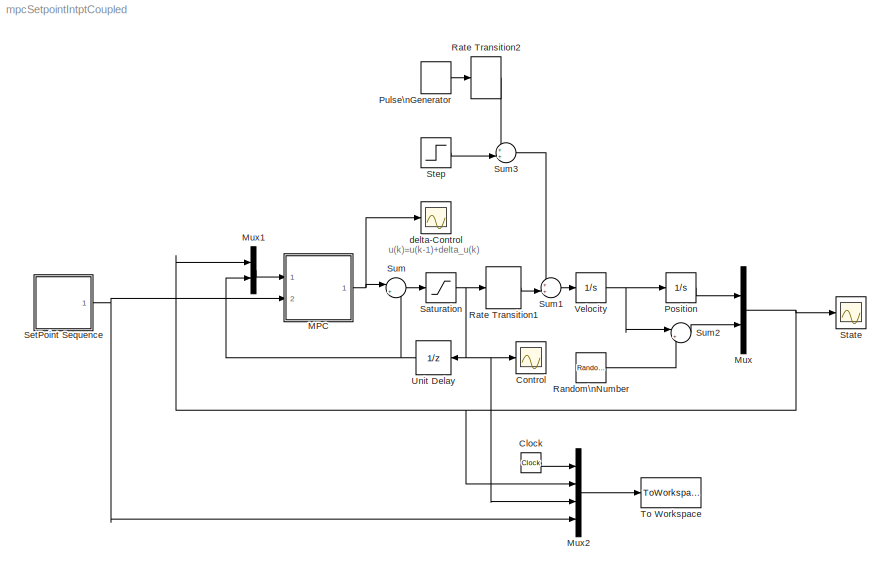
MODEL mpcSetpointIntptCoupled
KIND model
BLOCK [Clock] Clock
  SID = 339
BLOCK [Scope] Control
  DataFormat = StructureWithTime
  Floating = off
  NumInputPorts = 1
  Ports = [1]
  SID = 8
  SampleTime = 0
  SaveName = ScopeData1
  ShowLegends = off
  TimeRange = 200
  YMax = 0.1
  YMin = -0.1
  ZoomMode = yonly
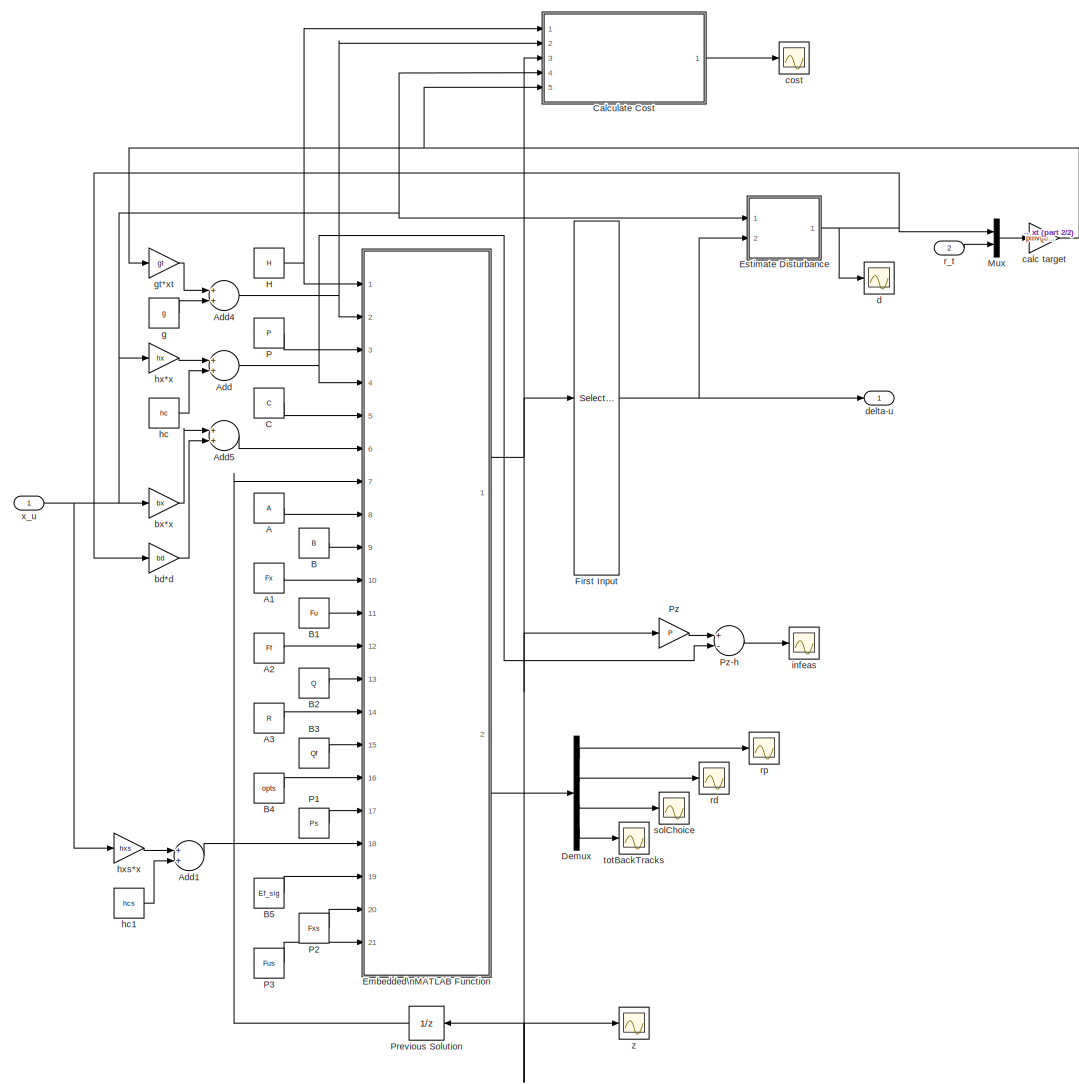
[diagram: MPC - part 1/2, most of the canvas]
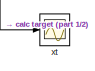
[diagram: MPC - part 2/2, top right region]
BLOCK [SubSystem] MPC
  FunctionWithSeparateData = off
  MaskHideContents = off
  MinAlgLoopOccurrences = off
  Opaque = off
  Ports = [2, 1]
  PropExecContextOutsideSubsystem = off
  RTWFcnNameOpts = Use subsystem name
  RTWFileNameOpts = Use subsystem name
  RTWSystemCode = Function
  RequestExecContextInheritance = off
  SID = 202
  SystemSampleTime = dt
  TreatAsAtomicUnit = on
BLOCK [Constant] MPC/A
  SID = 273
  Value = A
BLOCK [Constant] MPC/A1
  SID = 308
  Value = Fx
BLOCK [Constant] MPC/A2
  SID = 310
  Value = Ff
BLOCK [Constant] MPC/A3
  SID = 312
  Value = R
BLOCK [Sum] MPC/Add
  InputSameDT = off
  OutDataTypeStr = Inherit: Inherit via internal rule
  Ports = [2, 1]
  SID = 296
  SaturateOnIntegerOverflow = off
BLOCK [Sum] MPC/Add1
  InputSameDT = off
  OutDataTypeStr = Inherit: Inherit via internal rule
  Ports = [2, 1]
  SID = 322
  SaturateOnIntegerOverflow = off
BLOCK [Sum] MPC/Add4
  InputSameDT = off
  OutDataTypeStr = Inherit: Inherit via internal rule
  Ports = [2, 1]
  SID = 351
  SaturateOnIntegerOverflow = off
BLOCK [Sum] MPC/Add5
  InputSameDT = off
  OutDataTypeStr = Inherit: Inherit via internal rule
  Ports = [2, 1]
  SID = 354
  SaturateOnIntegerOverflow = off
BLOCK [Constant] MPC/B
  SID = 274
  Value = B
BLOCK [Constant] MPC/B1
  SID = 309
  Value = Fu
BLOCK [Constant] MPC/B2
  SID = 311
  Value = Q
BLOCK [Constant] MPC/B3
  SID = 313
  Value = Qf
BLOCK [Constant] MPC/B4
  SID = 320
  Value = opts
BLOCK [Constant] MPC/B5
  SID = 361
  Value = Ef_sig
BLOCK [Constant] MPC/C
  SID = 243
  Value = C
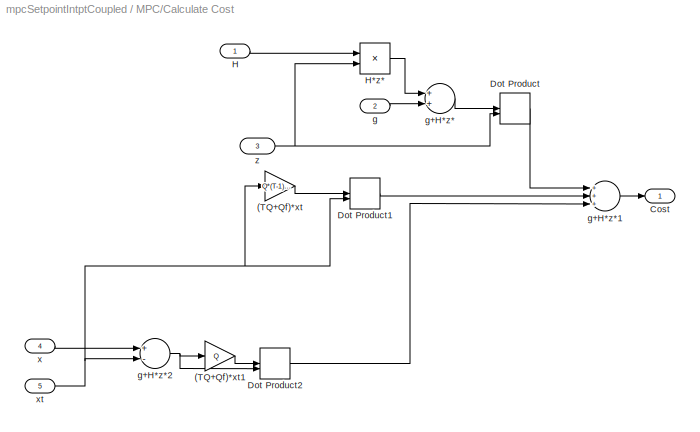
BLOCK [SubSystem] MPC/Calculate Cost
  FunctionWithSeparateData = off
  MaskHideContents = off
  MinAlgLoopOccurrences = off
  Opaque = off
  Ports = [5, 1]
  PropExecContextOutsideSubsystem = off
  RTWSystemCode = Auto
  RequestExecContextInheritance = off
  SID = 380
BLOCK [Gain] MPC/Calculate Cost/(TQ+Qf)*xt
  Gain = Q*(T-1)+Qf
  Multiplication = Matrix(K*u)
  OutDataTypeStr = Inherit: Inherit via internal rule
  ParamDataTypeStr = Inherit: Inherit via internal rule
  SID = 369
  SaturateOnIntegerOverflow = off
BLOCK [Gain] MPC/Calculate Cost/(TQ+Qf)*xt1
  Gain = Q
  Multiplication = Matrix(K*u)
  OutDataTypeStr = Inherit: Inherit via internal rule
  ParamDataTypeStr = Inherit: Inherit via internal rule
  SID = 377
  SaturateOnIntegerOverflow = off
BLOCK [Outport] MPC/Calculate Cost/Cost
  IconDisplay = Port number
  SID = 383
BLOCK [DotProduct] MPC/Calculate Cost/Dot Product
  OutDataTypeStr = Inherit: Inherit via internal rule
  SID = 370
BLOCK [DotProduct] MPC/Calculate Cost/Dot Product1
  OutDataTypeStr = Inherit: Inherit via internal rule
  SID = 371
BLOCK [DotProduct] MPC/Calculate Cost/Dot Product2
  OutDataTypeStr = Inherit: Inherit via internal rule
  SID = 379
BLOCK [Inport] MPC/Calculate Cost/H
  IconDisplay = Port number
  SID = 381
BLOCK [Product] MPC/Calculate Cost/H*z*
  InputSameDT = off
  Multiplication = Matrix(*)
  OutDataTypeStr = Inherit: Inherit via internal rule
  Ports = [2, 1]
  SID = 372
  SaturateOnIntegerOverflow = off
BLOCK [Inport] MPC/Calculate Cost/g
  IconDisplay = Port number
  Port = 2
  SID = 382
BLOCK [Sum] MPC/Calculate Cost/g+H*z*
  InputSameDT = off
  OutDataTypeStr = Inherit: Inherit via internal rule
  Ports = [2, 1]
  SID = 373
  SaturateOnIntegerOverflow = off
BLOCK [Sum] MPC/Calculate Cost/g+H*z*1
  InputSameDT = off
  Inputs = +++
  OutDataTypeStr = Inherit: Inherit via internal rule
  Ports = [3, 1]
  SID = 374
  SaturateOnIntegerOverflow = off
BLOCK [Sum] MPC/Calculate Cost/g+H*z*2
  InputSameDT = off
  Inputs = +-
  OutDataTypeStr = Inherit: Inherit via internal rule
  Ports = [2, 1]
  SID = 378
  SaturateOnIntegerOverflow = off
BLOCK [Inport] MPC/Calculate Cost/x
  IconDisplay = Port number
  Port = 4
  SID = 385
BLOCK [Inport] MPC/Calculate Cost/xt
  IconDisplay = Port number
  Port = 5
  SID = 386
BLOCK [Inport] MPC/Calculate Cost/z
  IconDisplay = Port number
  Port = 3
  SID = 384
BLOCK [Demux] MPC/Demux
  DisplayOption = bar
  Ports = [1, 4]
  SID = 314
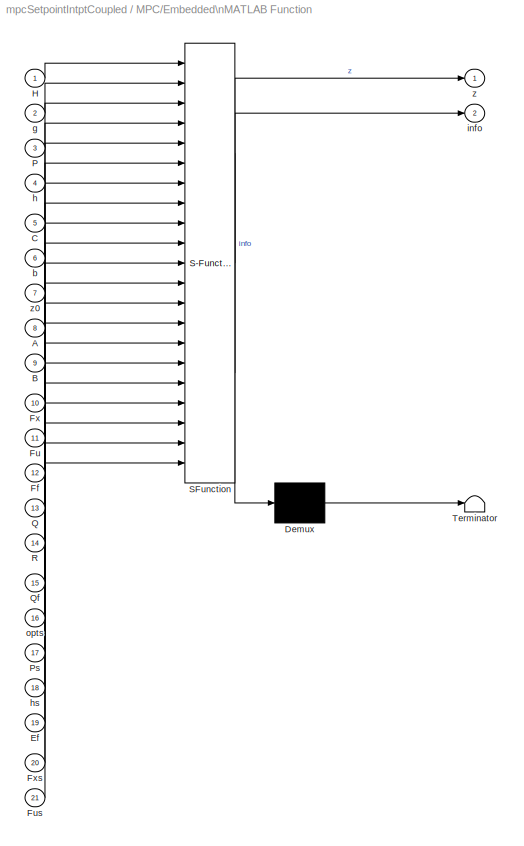
BLOCK [SubSystem] MPC/Embedded\nMATLAB Function
  ErrorFcn = Stateflow.Translate.translate
  FunctionWithSeparateData = off
  MaskHideContents = off
  MinAlgLoopOccurrences = off
  Opaque = off
  PermitHierarchicalResolution = ExplicitOnly
  Ports = [21, 2]
  PropExecContextOutsideSubsystem = off
  RTWFileNameOpts = Use subsystem name
  RTWSystemCode = Auto
  RequestExecContextInheritance = off
  SFBlockType = MATLAB Function
  SID = 231
  TreatAsAtomicUnit = on
BLOCK [Demux] MPC/Embedded\nMATLAB Function/ Demux 
  Outputs = 1
  Ports = [1, 1]
  SID = 231::36
BLOCK [S-Function] MPC/Embedded\nMATLAB Function/ SFunction 
  EnableBusSupport = on
  FunctionName = sf_sfun
  PortCounts = [21 3]
  Ports = [21, 3]
  SID = 231::35
  Tag = Stateflow S-Function mpcSetpointIntptCoupled 2
BLOCK [Terminator] MPC/Embedded\nMATLAB Function/ Terminator 
  SID = 231::37
BLOCK [Inport] MPC/Embedded\nMATLAB Function/A
  IconDisplay = Port number
  Port = 8
  SID = 231::17
BLOCK [Inport] MPC/Embedded\nMATLAB Function/B
  IconDisplay = Port number
  Port = 9
  SID = 231::22
BLOCK [Inport] MPC/Embedded\nMATLAB Function/C
  IconDisplay = Port number
  Port = 5
  SID = 231::13
BLOCK [Inport] MPC/Embedded\nMATLAB Function/Ef
  IconDisplay = Port number
  Port = 19
  SID = 231::33
BLOCK [Inport] MPC/Embedded\nMATLAB Function/Ff
  IconDisplay = Port number
  Port = 12
  SID = 231::25
BLOCK [Inport] MPC/Embedded\nMATLAB Function/Fu
  IconDisplay = Port number
  Port = 11
  SID = 231::24
BLOCK [Inport] MPC/Embedded\nMATLAB Function/Fus
  IconDisplay = Port number
  Port = 21
  SID = 231::38
BLOCK [Inport] MPC/Embedded\nMATLAB Function/Fx
  IconDisplay = Port number
  Port = 10
  SID = 231::23
BLOCK [Inport] MPC/Embedded\nMATLAB Function/Fxs
  IconDisplay = Port number
  Port = 20
  SID = 231::34
BLOCK [Inport] MPC/Embedded\nMATLAB Function/H
  IconDisplay = Port number
  SID = 231::1
BLOCK [Inport] MPC/Embedded\nMATLAB Function/P
  IconDisplay = Port number
  Port = 3
  SID = 231::11
BLOCK [Inport] MPC/Embedded\nMATLAB Function/Ps
  IconDisplay = Port number
  Port = 17
  SID = 231::31
BLOCK [Inport] MPC/Embedded\nMATLAB Function/Q
  IconDisplay = Port number
  Port = 13
  SID = 231::26
BLOCK [Inport] MPC/Embedded\nMATLAB Function/Qf
  IconDisplay = Port number
  Port = 15
  SID = 231::28
BLOCK [Inport] MPC/Embedded\nMATLAB Function/R
  IconDisplay = Port number
  Port = 14
  SID = 231::27
BLOCK [Inport] MPC/Embedded\nMATLAB Function/b
  IconDisplay = Port number
  Port = 6
  SID = 231::14
BLOCK [Inport] MPC/Embedded\nMATLAB Function/g
  IconDisplay = Port number
  Port = 2
  SID = 231::10
BLOCK [Inport] MPC/Embedded\nMATLAB Function/h
  IconDisplay = Port number
  Port = 4
  SID = 231::12
BLOCK [Inport] MPC/Embedded\nMATLAB Function/hs
  IconDisplay = Port number
  Port = 18
  SID = 231::32
BLOCK [Outport] MPC/Embedded\nMATLAB Function/info
  IconDisplay = Port number
  Port = 2
  SID = 231::29
BLOCK [Inport] MPC/Embedded\nMATLAB Function/opts
  IconDisplay = Port number
  Port = 16
  SID = 231::30
BLOCK [Outport] MPC/Embedded\nMATLAB Function/z
  IconDisplay = Port number
  SID = 231::5
BLOCK [Inport] MPC/Embedded\nMATLAB Function/z0
  IconDisplay = Port number
  Port = 7
  SID = 231::15
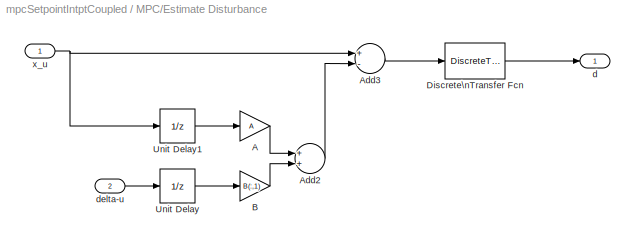
BLOCK [SubSystem] MPC/Estimate Disturbance
  FunctionWithSeparateData = off
  MaskHideContents = off
  MinAlgLoopOccurrences = off
  Opaque = off
  Ports = [2, 1]
  PropExecContextOutsideSubsystem = off
  RTWSystemCode = Auto
  RequestExecContextInheritance = off
  SID = 364
BLOCK [Gain] MPC/Estimate Disturbance/A
  Gain = A
  Multiplication = Matrix(K*u)
  OutDataTypeStr = Inherit: Inherit via internal rule
  ParamDataTypeStr = Inherit: Inherit via internal rule
  SID = 342
  SaturateOnIntegerOverflow = off
BLOCK [Sum] MPC/Estimate Disturbance/Add2
  InputSameDT = off
  OutDataTypeStr = Inherit: Inherit via internal rule
  Ports = [2, 1]
  SID = 344
  SaturateOnIntegerOverflow = off
BLOCK [Sum] MPC/Estimate Disturbance/Add3
  InputSameDT = off
  Inputs = +-
  OutDataTypeStr = Inherit: Inherit via internal rule
  Ports = [2, 1]
  SID = 345
  SaturateOnIntegerOverflow = off
BLOCK [Gain] MPC/Estimate Disturbance/B
  Gain = B(:,1)
  Multiplication = Matrix(K*u)
  OutDataTypeStr = Inherit: Inherit via internal rule
  ParamDataTypeStr = Inherit: Inherit via internal rule
  SID = 343
  SaturateOnIntegerOverflow = off
BLOCK [DiscreteTransferFcn] MPC/Estimate Disturbance/Discrete\nTransfer Fcn
  Denominator = [1 -0.5]
  InputPortMap = u0
  Numerator = [0.5]
  Ports = [1, 1]
  SID = 368
BLOCK [UnitDelay] MPC/Estimate Disturbance/Unit Delay
  InputProcessing = Elements as channels (sample based)
  SID = 340
  SampleTime = -1
BLOCK [UnitDelay] MPC/Estimate Disturbance/Unit Delay1
  InputProcessing = Elements as channels (sample based)
  SID = 341
  SampleTime = -1
BLOCK [Outport] MPC/Estimate Disturbance/d
  IconDisplay = Port number
  SID = 366
BLOCK [Inport] MPC/Estimate Disturbance/delta-u
  IconDisplay = Port number
  Port = 2
  SID = 367
BLOCK [Inport] MPC/Estimate Disturbance/x_u
  IconDisplay = Port number
  SID = 365
BLOCK [Selector] MPC/First Input
  IndexOptions = Index vector (dialog)
  Indices = 1
  InputPortWidth = T*(n+m)
  OutputSizes = 1
  Ports = [1, 1]
  SID = 204
BLOCK [Constant] MPC/H
  SID = 236
  Value = H
BLOCK [Mux] MPC/Mux
  DisplayOption = bar
  Inputs = 2
  Ports = [2, 1]
  SID = 348
BLOCK [Constant] MPC/P
  SID = 244
  Value = P
BLOCK [Constant] MPC/P1
  SID = 321
  Value = Ps
BLOCK [Constant] MPC/P2
  SID = 362
  Value = Fxs
BLOCK [Constant] MPC/P3
  SID = 363
  Value = Fus
BLOCK [UnitDelay] MPC/Previous Solution
  SID = 238
  SampleTime = -1
BLOCK [Gain] MPC/Pz
  Gain = P
  Multiplication = Matrix(K*u)
  OutDataTypeStr = Inherit: Inherit via internal rule
  ParamDataTypeStr = Inherit: Inherit via internal rule
  SID = 397
  SaturateOnIntegerOverflow = off
BLOCK [Sum] MPC/Pz-h
  InputSameDT = off
  Inputs = +-
  OutDataTypeStr = Inherit: Inherit via internal rule
  Ports = [2, 1]
  SID = 398
  SaturateOnIntegerOverflow = off
BLOCK [Gain] MPC/bd*d
  Gain = bd
  Multiplication = Matrix(K*u)
  OutDataTypeStr = Inherit: Inherit via internal rule
  ParamDataTypeStr = Inherit: Inherit via internal rule
  SID = 353
  SaturateOnIntegerOverflow = off
BLOCK [Gain] MPC/bx*x
  Gain = bx
  Multiplication = Matrix(K*u)
  OutDataTypeStr = Inherit: Inherit via internal rule
  ParamDataTypeStr = Inherit: Inherit via internal rule
  SID = 298
  SaturateOnIntegerOverflow = off
BLOCK [Gain] MPC/calc target
  Gain = pinv([eye(3)-A;1 0 0])
  Multiplication = Matrix(K*u)
  OutDataTypeStr = Inherit: Inherit via internal rule
  ParamDataTypeStr = Inherit: Inherit via internal rule
  SID = 356
  SaturateOnIntegerOverflow = off
BLOCK [Scope] MPC/cost
  DataFormat = StructureWithTime
  Floating = off
  NumInputPorts = 1
  Ports = [1]
  SID = 376
  SampleTime = 0
  SaveName = ScopeData8
  ShowLegends = off
  YMax = 1e+06
  YMin = -1.9e+07
  ZoomMode = yonly
BLOCK [Scope] MPC/d
  DataFormat = StructureWithTime
  Floating = off
  NumInputPorts = 1
  Ports = [1]
  SID = 346
  SampleTime = 0
  SaveName = ScopeData6
  ShowLegends = off
  YMax = 0.002
  YMin = -0.00025
BLOCK [Outport] MPC/delta-u
  IconDisplay = Port number
  SID = 208
BLOCK [Constant] MPC/g
  SID = 233
  Value = g
BLOCK [Gain] MPC/gt*xt
  Gain = gt
  Multiplication = Matrix(K*u)
  OutDataTypeStr = Inherit: Inherit via internal rule
  ParamDataTypeStr = Inherit: Inherit via internal rule
  SID = 352
  SaturateOnIntegerOverflow = off
BLOCK [Constant] MPC/hc
  SID = 209
  Value = hc
BLOCK [Constant] MPC/hc1
  SID = 323
  Value = hcs
BLOCK [Gain] MPC/hx*x
  Gain = hx
  Multiplication = Matrix(K*u)
  OutDataTypeStr = Inherit: Inherit via internal rule
  ParamDataTypeStr = Inherit: Inherit via internal rule
  SID = 297
  SaturateOnIntegerOverflow = off
BLOCK [Gain] MPC/hxs*x
  Gain = hxs
  Multiplication = Matrix(K*u)
  OutDataTypeStr = Inherit: Inherit via internal rule
  ParamDataTypeStr = Inherit: Inherit via internal rule
  SID = 324
  SaturateOnIntegerOverflow = off
BLOCK [Scope] MPC/infeas
  DataFormat = StructureWithTime
  Floating = off
  NumInputPorts = 1
  Ports = [1]
  SID = 399
  SampleTime = 0
  SaveName = ScopeData11
  ShowLegends = off
  YMax = 2.75e-08
  YMin = 1.65436e-24
  ZoomMode = yonly
BLOCK [Inport] MPC/r_t
  IconDisplay = Port number
  Port = 2
  SID = 349
BLOCK [Scope] MPC/rd
  DataFormat = StructureWithTime
  Floating = off
  NumInputPorts = 1
  Ports = [1]
  SID = 316
  SampleTime = 0
  SaveName = ScopeData4
  ShowLegends = off
  YMax = 13
  YMin = 0
  ZoomMode = yonly
BLOCK [Scope] MPC/rp
  DataFormat = StructureWithTime
  Floating = off
  NumInputPorts = 1
  Ports = [1]
  SID = 315
  SampleTime = 0
  SaveName = ScopeData3
  ShowLegends = off
  YMax = 2.75e-08
  YMin = 1.65436e-24
  ZoomMode = yonly
BLOCK [Scope] MPC/solChoice
  DataFormat = StructureWithTime
  Floating = off
  NumInputPorts = 1
  Ports = [1]
  SID = 317
  SampleTime = 0
  SaveName = ScopeData5
  ShowLegends = off
  YMax = 4.2
  YMin = 3.8
BLOCK [Scope] MPC/totBackTracks
  DataFormat = StructureWithTime
  Floating = off
  NumInputPorts = 1
  Ports = [1]
  SID = 392
  SampleTime = 0
  SaveName = ScopeData9
  ShowLegends = off
  YMax = 1.05
  YMin = 0.95
  ZoomMode = yonly
BLOCK [Inport] MPC/x_u
  IconDisplay = Port number
  SID = 203
BLOCK [Scope] MPC/xt
  DataFormat = StructureWithTime
  Floating = off
  NumInputPorts = 1
  Ports = [1]
  SID = 350
  SampleTime = 0
  SaveName = ScopeData7
  ShowLegends = off
  YMax = 2.5
  YMin = -0.25
  ZoomMode = yonly
BLOCK [Scope] MPC/z
  DataFormat = StructureWithTime
  Floating = off
  NumInputPorts = 1
  Ports = [1]
  SID = 396
  SampleTime = 0
  SaveName = ScopeData10
  ShowLegends = off
  YMax = 2.75e-08
  YMin = 1.65436e-24
BLOCK [Mux] Mux
  DisplayOption = bar
  Inputs = 2
  Ports = [2, 1]
  SID = 3
BLOCK [Mux] Mux1
  DisplayOption = bar
  Inputs = 2
  Ports = [2, 1]
  SID = 89
BLOCK [Mux] Mux2
  DisplayOption = bar
  Ports = [4, 1]
  SID = 337
BLOCK [Integrator] Position
  Ports = [1, 1]
  SID = 2
BLOCK [DiscretePulseGenerator] Pulse\nGenerator
  Amplitude = -0.2*0
  Period = 200
  PhaseDelay = 80
  Ports = [0, 1]
  PulseType = Time based
  SID = 390
BLOCK [RandomNumber] Random\nNumber
  SID = 358
  SampleTime = dt
  Variance = 0.000000001
BLOCK [RateTransition] Rate Transition1
  SID = 360
BLOCK [RateTransition] Rate Transition2
  SID = 391
BLOCK [Saturate] Saturation
  InputPortMap = u0
  LowerLimit = -0.0999
  Ports = [1, 1]
  SID = 394
  UpperLimit = 0.0999
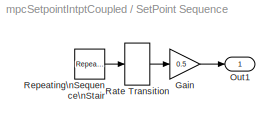
BLOCK [SubSystem] SetPoint Sequence
  FunctionWithSeparateData = off
  MaskHideContents = off
  MinAlgLoopOccurrences = off
  Opaque = off
  Ports = [0, 1]
  PropExecContextOutsideSubsystem = off
  RTWSystemCode = Auto
  RequestExecContextInheritance = off
  SID = 40
BLOCK [Gain] SetPoint Sequence/Gain
  Gain = 0.5
  OutDataTypeStr = Inherit: Inherit via internal rule
  ParamDataTypeStr = Inherit: Inherit via internal rule
  SID = 11
  SaturateOnIntegerOverflow = off
BLOCK [Outport] SetPoint Sequence/Out1
  IconDisplay = Port number
  SID = 41
BLOCK [RateTransition] SetPoint Sequence/Rate Transition
  SID = 36
BLOCK [Reference] SetPoint Sequence/Repeating\nSequence\nStair  REF=simulink/Sources/Repeating\nSequence\nStair
  ConRadixGroup = Best Precision: Vector-wise
  LockScale = off
  OutDataType = double
  OutDataTypeStr = double
  OutMax = []
  OutMin = []
  OutScaling = 2^-12
  OutValues = [1 0 2 0 3 0 4 0 5 0 6 0].'
  OutputDataTypeScalingMode = Specify via dialog
  Ports = [0, 1]
  SID = 9
  SourceBlock = simulink/Sources/Repeating\nSequence\nStair
  SourceType = Repeating Sequence Stair
  tsamp = 20
BLOCK [Scope] State
  DataFormat = StructureWithTime
  Floating = off
  NumInputPorts = 1
  Ports = [1]
  SID = 7
  SampleTime = 0
  ShowLegends = off
  TimeRange = 200
  YMax = 1.1
  YMin = -0.2
  ZoomMode = yonly
BLOCK [Step] Step
  After = 0.01
  SID = 355
  SampleTime = 0
  Time = 50
BLOCK [Sum] Sum
  IconShape = round
  InputSameDT = off
  Inputs = |++
  OutDataTypeStr = Inherit: Inherit via internal rule
  Ports = [2, 1]
  SID = 87
  SaturateOnIntegerOverflow = off
BLOCK [Sum] Sum1
  IconShape = round
  InputSameDT = off
  Inputs = ++|
  OutDataTypeStr = Inherit: Inherit via internal rule
  Ports = [2, 1]
  SID = 325
  SaturateOnIntegerOverflow = off
BLOCK [Sum] Sum2
  IconShape = round
  InputSameDT = off
  Inputs = |++
  OutDataTypeStr = Inherit: Inherit via internal rule
  Ports = [2, 1]
  SID = 357
  SaturateOnIntegerOverflow = off
BLOCK [Sum] Sum3
  IconShape = round
  InputSameDT = off
  Inputs = ++|
  OutDataTypeStr = Inherit: Inherit via internal rule
  Ports = [2, 1]
  SID = 388
  SaturateOnIntegerOverflow = off
BLOCK [ToWorkspace] To Workspace
  MaxDataPoints = inf
  Ports = [1]
  SID = 338
  SampleTime = -1
  VariableName = simout
BLOCK [UnitDelay] Unit Delay
  SID = 88
  SampleTime = dt
BLOCK [Integrator] Velocity
  Ports = [1, 1]
  SID = 1
BLOCK [Scope] delta-Control
  DataFormat = StructureWithTime
  Floating = off
  NumInputPorts = 1
  Ports = [1]
  SID = 307
  SampleTime = 0
  SaveName = ScopeData2
  ShowLegends = off
  TimeRange = 240
  YMax = 0.35
  YMin = -0.4
ANNOTATION (root): u(k)=u(k-1)+delta_u(k)
LINE Clock:1 -> Mux2:1
LINE MPC/A1:1 -> MPC/Embedded\nMATLAB Function:10
LINE MPC/A2:1 -> MPC/Embedded\nMATLAB Function:12
LINE MPC/A3:1 -> MPC/Embedded\nMATLAB Function:14
LINE MPC/A:1 -> MPC/Embedded\nMATLAB Function:8
LINE MPC/Add1:1 -> MPC/Embedded\nMATLAB Function:18
NET MPC/Add4:1 -> MPC/Calculate Cost:2, MPC/Embedded\nMATLAB Function:2
LINE MPC/Add5:1 -> MPC/Embedded\nMATLAB Function:6
NET MPC/Add:1 -> MPC/Embedded\nMATLAB Function:4, MPC/Pz-h:2
LINE MPC/B1:1 -> MPC/Embedded\nMATLAB Function:11
LINE MPC/B2:1 -> MPC/Embedded\nMATLAB Function:13
LINE MPC/B3:1 -> MPC/Embedded\nMATLAB Function:15
LINE MPC/B4:1 -> MPC/Embedded\nMATLAB Function:16
LINE MPC/B5:1 -> MPC/Embedded\nMATLAB Function:19
LINE MPC/B:1 -> MPC/Embedded\nMATLAB Function:9
LINE MPC/C:1 -> MPC/Embedded\nMATLAB Function:5
LINE MPC/Calculate Cost/(TQ+Qf)*xt1:1 -> MPC/Calculate Cost/Dot Product2:1
LINE MPC/Calculate Cost/(TQ+Qf)*xt:1 -> MPC/Calculate Cost/Dot Product1:1
LINE MPC/Calculate Cost/Dot Product1:1 -> MPC/Calculate Cost/g+H*z*1:2
LINE MPC/Calculate Cost/Dot Product2:1 -> MPC/Calculate Cost/g+H*z*1:3
LINE MPC/Calculate Cost/Dot Product:1 -> MPC/Calculate Cost/g+H*z*1:1
LINE MPC/Calculate Cost/H*z*:1 -> MPC/Calculate Cost/g+H*z*:1
LINE MPC/Calculate Cost/H:1 -> MPC/Calculate Cost/H*z*:1
LINE MPC/Calculate Cost/g+H*z*1:1 -> MPC/Calculate Cost/Cost:1
NET MPC/Calculate Cost/g+H*z*2:1 -> MPC/Calculate Cost/(TQ+Qf)*xt1:1, MPC/Calculate Cost/Dot Product2:2
LINE MPC/Calculate Cost/g+H*z*:1 -> MPC/Calculate Cost/Dot Product:1
LINE MPC/Calculate Cost/g:1 -> MPC/Calculate Cost/g+H*z*:2
LINE MPC/Calculate Cost/x:1 -> MPC/Calculate Cost/g+H*z*2:1
NET MPC/Calculate Cost/xt:1 -> MPC/Calculate Cost/(TQ+Qf)*xt:1, MPC/Calculate Cost/Dot Product1:2, MPC/Calculate Cost/g+H*z*2:2
NET MPC/Calculate Cost/z:1 -> MPC/Calculate Cost/Dot Product:2, MPC/Calculate Cost/H*z*:2
LINE MPC/Calculate Cost:1 -> MPC/cost:1
LINE MPC/Demux:1 -> MPC/rp:1
LINE MPC/Demux:2 -> MPC/rd:1
LINE MPC/Demux:3 -> MPC/solChoice:1
LINE MPC/Demux:4 -> MPC/totBackTracks:1
LINE MPC/Embedded\nMATLAB Function/ Demux :1 -> MPC/Embedded\nMATLAB Function/ Terminator :1
LINE MPC/Embedded\nMATLAB Function/ SFunction :1 -> MPC/Embedded\nMATLAB Function/ Demux :1
LINE MPC/Embedded\nMATLAB Function/ SFunction :2 -> MPC/Embedded\nMATLAB Function/z:1
LINE MPC/Embedded\nMATLAB Function/ SFunction :3 -> MPC/Embedded\nMATLAB Function/info:1
LINE MPC/Embedded\nMATLAB Function/A:1 -> MPC/Embedded\nMATLAB Function/ SFunction :8
LINE MPC/Embedded\nMATLAB Function/B:1 -> MPC/Embedded\nMATLAB Function/ SFunction :9
LINE MPC/Embedded\nMATLAB Function/C:1 -> MPC/Embedded\nMATLAB Function/ SFunction :5
LINE MPC/Embedded\nMATLAB Function/Ef:1 -> MPC/Embedded\nMATLAB Function/ SFunction :19
LINE MPC/Embedded\nMATLAB Function/Ff:1 -> MPC/Embedded\nMATLAB Function/ SFunction :12
LINE MPC/Embedded\nMATLAB Function/Fu:1 -> MPC/Embedded\nMATLAB Function/ SFunction :11
LINE MPC/Embedded\nMATLAB Function/Fus:1 -> MPC/Embedded\nMATLAB Function/ SFunction :21
LINE MPC/Embedded\nMATLAB Function/Fx:1 -> MPC/Embedded\nMATLAB Function/ SFunction :10
LINE MPC/Embedded\nMATLAB Function/Fxs:1 -> MPC/Embedded\nMATLAB Function/ SFunction :20
LINE MPC/Embedded\nMATLAB Function/H:1 -> MPC/Embedded\nMATLAB Function/ SFunction :1
LINE MPC/Embedded\nMATLAB Function/P:1 -> MPC/Embedded\nMATLAB Function/ SFunction :3
LINE MPC/Embedded\nMATLAB Function/Ps:1 -> MPC/Embedded\nMATLAB Function/ SFunction :17
LINE MPC/Embedded\nMATLAB Function/Q:1 -> MPC/Embedded\nMATLAB Function/ SFunction :13
LINE MPC/Embedded\nMATLAB Function/Qf:1 -> MPC/Embedded\nMATLAB Function/ SFunction :15
LINE MPC/Embedded\nMATLAB Function/R:1 -> MPC/Embedded\nMATLAB Function/ SFunction :14
LINE MPC/Embedded\nMATLAB Function/b:1 -> MPC/Embedded\nMATLAB Function/ SFunction :6
LINE MPC/Embedded\nMATLAB Function/g:1 -> MPC/Embedded\nMATLAB Function/ SFunction :2
LINE MPC/Embedded\nMATLAB Function/h:1 -> MPC/Embedded\nMATLAB Function/ SFunction :4
LINE MPC/Embedded\nMATLAB Function/hs:1 -> MPC/Embedded\nMATLAB Function/ SFunction :18
LINE MPC/Embedded\nMATLAB Function/opts:1 -> MPC/Embedded\nMATLAB Function/ SFunction :16
LINE MPC/Embedded\nMATLAB Function/z0:1 -> MPC/Embedded\nMATLAB Function/ SFunction :7
NET MPC/Embedded\nMATLAB Function:1 -> MPC/Calculate Cost:3, MPC/First Input:1, MPC/Previous Solution:1, MPC/Pz:1, MPC/z:1
LINE MPC/Embedded\nMATLAB Function:2 -> MPC/Demux:1
LINE MPC/Estimate Disturbance/A:1 -> MPC/Estimate Disturbance/Add2:1
LINE MPC/Estimate Disturbance/Add2:1 -> MPC/Estimate Disturbance/Add3:2
LINE MPC/Estimate Disturbance/Add3:1 -> MPC/Estimate Disturbance/Discrete\nTransfer Fcn:1
LINE MPC/Estimate Disturbance/B:1 -> MPC/Estimate Disturbance/Add2:2
LINE MPC/Estimate Disturbance/Discrete\nTransfer Fcn:1 -> MPC/Estimate Disturbance/d:1
LINE MPC/Estimate Disturbance/Unit Delay1:1 -> MPC/Estimate Disturbance/A:1
LINE MPC/Estimate Disturbance/Unit Delay:1 -> MPC/Estimate Disturbance/B:1
LINE MPC/Estimate Disturbance/delta-u:1 -> MPC/Estimate Disturbance/Unit Delay:1
NET MPC/Estimate Disturbance/x_u:1 -> MPC/Estimate Disturbance/Add3:1, MPC/Estimate Disturbance/Unit Delay1:1
NET MPC/Estimate Disturbance:1 -> MPC/Mux:1, MPC/bd*d:1, MPC/d:1
NET MPC/First Input:1 -> MPC/Estimate Disturbance:2, MPC/delta-u:1
NET MPC/H:1 -> MPC/Calculate Cost:1, MPC/Embedded\nMATLAB Function:1
LINE MPC/Mux:1 -> MPC/calc target:1
LINE MPC/P1:1 -> MPC/Embedded\nMATLAB Function:17
LINE MPC/P2:1 -> MPC/Embedded\nMATLAB Function:20
LINE MPC/P3:1 -> MPC/Embedded\nMATLAB Function:21
LINE MPC/P:1 -> MPC/Embedded\nMATLAB Function:3
LINE MPC/Previous Solution:1 -> MPC/Embedded\nMATLAB Function:7
LINE MPC/Pz-h:1 -> MPC/infeas:1
LINE MPC/Pz:1 -> MPC/Pz-h:1
LINE MPC/bd*d:1 -> MPC/Add5:2
LINE MPC/bx*x:1 -> MPC/Add5:1
NET MPC/calc target:1 -> MPC/Calculate Cost:5, MPC/gt*xt:1, MPC/xt:1
LINE MPC/g:1 -> MPC/Add4:2
LINE MPC/gt*xt:1 -> MPC/Add4:1
LINE MPC/hc1:1 -> MPC/Add1:2
LINE MPC/hc:1 -> MPC/Add:2
LINE MPC/hx*x:1 -> MPC/Add:1
LINE MPC/hxs*x:1 -> MPC/Add1:1
LINE MPC/r_t:1 -> MPC/Mux:2
NET MPC/x_u:1 -> MPC/Calculate Cost:4, MPC/Estimate Disturbance:1, MPC/bx*x:1, MPC/hx*x:1, MPC/hxs*x:1
NET MPC:1 -> Sum:1, delta-Control:1
LINE Mux1:1 -> MPC:1
LINE Mux2:1 -> To Workspace:1
NET Mux:1 -> Mux1:1, Mux2:2, State:1
LINE Position:1 -> Mux:1
LINE Pulse\nGenerator:1 -> Rate Transition2:1
LINE Random\nNumber:1 -> Sum2:2
LINE Rate Transition1:1 -> Sum1:2
LINE Rate Transition2:1 -> Sum3:1
NET Saturation:1 -> Control:1, Mux2:3, Rate Transition1:1, Unit Delay:1
LINE SetPoint Sequence/Gain:1 -> SetPoint Sequence/Out1:1
LINE SetPoint Sequence/Rate Transition:1 -> SetPoint Sequence/Gain:1
LINE SetPoint Sequence/Repeating\nSequence\nStair:1 -> SetPoint Sequence/Rate Transition:1
NET SetPoint Sequence:1 -> MPC:2, Mux2:4
LINE Step:1 -> Sum3:2
LINE Sum1:1 -> Velocity:1
LINE Sum2:1 -> Mux:2
LINE Sum3:1 -> Sum1:1
LINE Sum:1 -> Saturation:1
NET Unit Delay:1 -> Mux1:2, Sum:2
NET Velocity:1 -> Position:1, Sum2:1
note: NET lines group one-source signal fan-out (src -> all destinations, sorted); 1:1 wires keep LINE
CHART MPC/Embedded\nMATLAB Function states=1 transitions=1
  STATE_LABEL 'eML_blk_kernel()'
